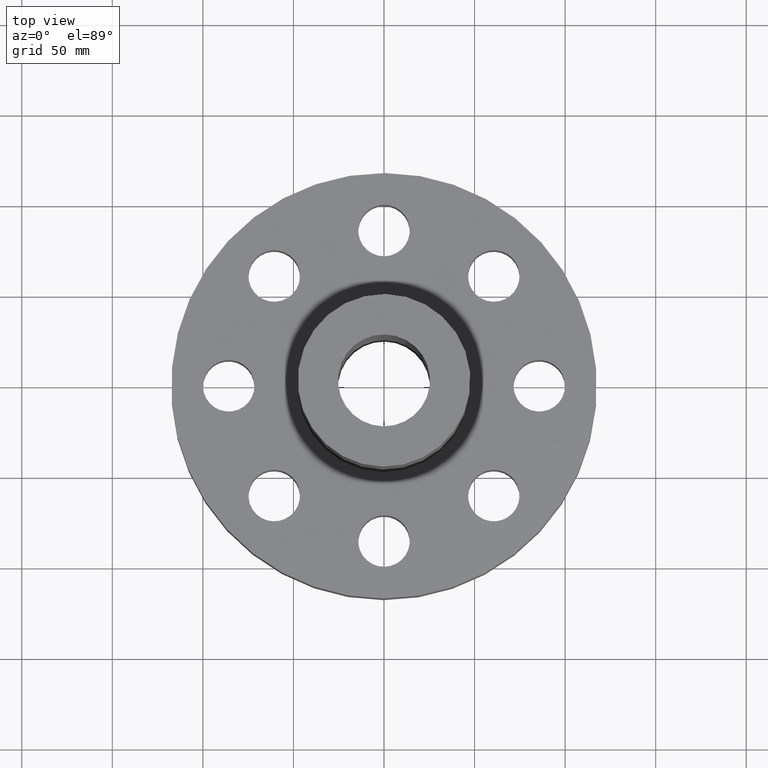
[diagram: clean part render]
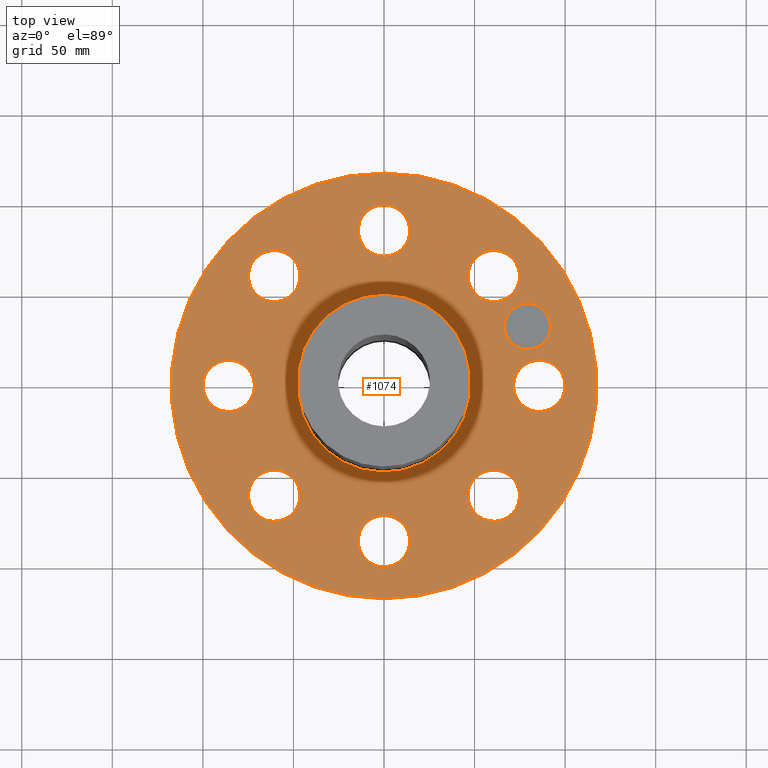
[diagram: same view with one face highlighted and labeled with its STEP entity id]
A machine part, top view. The second image highlights one B-rep face of the part: STEP entity #1074.
In plain terms, the highlighted planar face has unit normal (0, 0, -1).
Its self-contained STEP definition (entity closure, byte-faithful):
#51=AXIS2_PLACEMENT_3D('Circle Axis2P3D',#49,#50,$) ;
#254=AXIS2_PLACEMENT_3D('Circle Axis2P3D',#252,#253,$) ;
#278=AXIS2_PLACEMENT_3D('Circle Axis2P3D',#276,#277,$) ;
#297=AXIS2_PLACEMENT_3D('Circle Axis2P3D',#295,#296,$) ;
#314=AXIS2_PLACEMENT_3D('Circle Axis2P3D',#312,#313,$) ;
#349=AXIS2_PLACEMENT_3D('Circle Axis2P3D',#347,#348,$) ;
#724=AXIS2_PLACEMENT_3D('Circle Axis2P3D',#722,#723,$) ;
#743=AXIS2_PLACEMENT_3D('Circle Axis2P3D',#741,#742,$) ;
#767=AXIS2_PLACEMENT_3D('Circle Axis2P3D',#765,#766,$) ;
#786=AXIS2_PLACEMENT_3D('Circle Axis2P3D',#784,#785,$) ;
#810=AXIS2_PLACEMENT_3D('Circle Axis2P3D',#808,#809,$) ;
#829=AXIS2_PLACEMENT_3D('Circle Axis2P3D',#827,#828,$) ;
#853=AXIS2_PLACEMENT_3D('Circle Axis2P3D',#851,#852,$) ;
#872=AXIS2_PLACEMENT_3D('Circle Axis2P3D',#870,#871,$) ;
#896=AXIS2_PLACEMENT_3D('Circle Axis2P3D',#894,#895,$) ;
#915=AXIS2_PLACEMENT_3D('Circle Axis2P3D',#913,#914,$) ;
#939=AXIS2_PLACEMENT_3D('Circle Axis2P3D',#937,#938,$) ;
#958=AXIS2_PLACEMENT_3D('Circle Axis2P3D',#956,#957,$) ;
#982=AXIS2_PLACEMENT_3D('Circle Axis2P3D',#980,#981,$) ;
#1001=AXIS2_PLACEMENT_3D('Circle Axis2P3D',#999,#1000,$) ;
#1014=AXIS2_PLACEMENT_3D('Plane Axis2P3D',#1011,#1012,#1013) ;
#1058=AXIS2_PLACEMENT_3D('Circle Axis2P3D',#1056,#1057,$) ;
#1067=AXIS2_PLACEMENT_3D('Circle Axis2P3D',#1065,#1066,$) ;
#44=CARTESIAN_POINT('Vertex',(2.88355376535,-0.268478301619,2.00000000001)) ;
#49=CARTESIAN_POINT('Axis2P3D Location',(3.37500000001,0.,2.00000000001)) ;
#53=CARTESIAN_POINT('Vertex',(3.86644623467,0.268478301619,2.00000000001)) ;
#252=CARTESIAN_POINT('Axis2P3D Location',(3.37500000001,0.,2.00000000001)) ;
#273=CARTESIAN_POINT('Vertex',(-2.21734311605,-4.05881934876,2.00000000001)) ;
#276=CARTESIAN_POINT('Axis2P3D Location',(0.,0.,2.00000000001)) ;
#280=CARTESIAN_POINT('Vertex',(2.21734311605,4.05881934876,2.00000000001)) ;
#295=CARTESIAN_POINT('Axis2P3D Location',(0.,0.,2.00000000001)) ;
#312=CARTESIAN_POINT('Axis2P3D Location',(0.,0.,2.00000000001)) ;
#316=CARTESIAN_POINT('Vertex',(0.898922884886,1.64546730355,2.00000000001)) ;
#318=CARTESIAN_POINT('Vertex',(-0.898922884886,-1.64546730355,2.00000000001)) ;
#347=CARTESIAN_POINT('Axis2P3D Location',(0.,0.,2.00000000001)) ;
#719=CARTESIAN_POINT('Vertex',(1.84913759372,-2.22882324907,2.00000000001)) ;
#722=CARTESIAN_POINT('Axis2P3D Location',(2.38648538651,-2.38648538651,2.00000000001)) ;
#726=CARTESIAN_POINT('Vertex',(2.92383317931,-2.54414752395,2.00000000001)) ;
#741=CARTESIAN_POINT('Axis2P3D Location',(2.38648538651,-2.38648538651,2.00000000001)) ;
#762=CARTESIAN_POINT('Vertex',(-0.268478301619,-2.88355376535,2.00000000001)) ;
#765=CARTESIAN_POINT('Axis2P3D Location',(-3.52823321745E-016,-3.37500000001,2.00000000001)) ;
#769=CARTESIAN_POINT('Vertex',(0.268478301619,-3.86644623467,2.00000000001)) ;
#784=CARTESIAN_POINT('Axis2P3D Location',(-3.52823321745E-016,-3.37500000001,2.00000000001)) ;
#805=CARTESIAN_POINT('Vertex',(-2.22882324907,-1.84913759372,2.00000000001)) ;
#808=CARTESIAN_POINT('Axis2P3D Location',(-2.38648538651,-2.38648538651,2.00000000001)) ;
#812=CARTESIAN_POINT('Vertex',(-2.54414752395,-2.92383317931,2.00000000001)) ;
#827=CARTESIAN_POINT('Axis2P3D Location',(-2.38648538651,-2.38648538651,2.00000000001)) ;
#848=CARTESIAN_POINT('Vertex',(-2.88355376535,0.268478301619,2.00000000001)) ;
#851=CARTESIAN_POINT('Axis2P3D Location',(-3.37500000001,-4.13318294714E-016,2.00000000001)) ;
#855=CARTESIAN_POINT('Vertex',(-3.86644623467,-0.268478301619,2.00000000001)) ;
#870=CARTESIAN_POINT('Axis2P3D Location',(-3.37500000001,-4.13318294714E-016,2.00000000001)) ;
#891=CARTESIAN_POINT('Vertex',(-1.84913759372,2.22882324907,2.00000000001)) ;
#894=CARTESIAN_POINT('Axis2P3D Location',(-2.38648538651,2.38648538651,2.00000000001)) ;
#898=CARTESIAN_POINT('Vertex',(-2.92383317931,2.54414752395,2.00000000001)) ;
#913=CARTESIAN_POINT('Axis2P3D Location',(-2.38648538651,2.38648538651,2.00000000001)) ;
#934=CARTESIAN_POINT('Vertex',(0.268478301619,2.88355376535,2.00000000001)) ;
#937=CARTESIAN_POINT('Axis2P3D Location',(-6.19977442071E-016,3.37500000001,2.00000000001)) ;
#941=CARTESIAN_POINT('Vertex',(-0.268478301619,3.86644623467,2.00000000001)) ;
#956=CARTESIAN_POINT('Axis2P3D Location',(-6.19977442071E-016,3.37500000001,2.00000000001)) ;
#977=CARTESIAN_POINT('Vertex',(2.22882324907,1.84913759372,2.00000000001)) ;
#980=CARTESIAN_POINT('Axis2P3D Location',(2.38648538651,2.38648538651,2.00000000001)) ;
#984=CARTESIAN_POINT('Vertex',(2.54414752395,2.92383317931,2.00000000001)) ;
#999=CARTESIAN_POINT('Axis2P3D Location',(2.38648538651,2.38648538651,2.00000000001)) ;
#1011=CARTESIAN_POINT('Axis2P3D Location',(0.,4.62500000002,2.00000000001)) ;
#1056=CARTESIAN_POINT('Axis2P3D Location',(3.11809342224,1.29155658424,2.00000000001)) ;
#1060=CARTESIAN_POINT('Vertex',(3.30943513651,0.829616822599,2.00000000001)) ;
#1062=CARTESIAN_POINT('Vertex',(2.92675170797,1.75349634588,2.00000000001)) ;
#1065=CARTESIAN_POINT('Axis2P3D Location',(3.11809342224,1.29155658424,2.00000000001)) ;
#50=DIRECTION('Axis2P3D Direction',(0.,-0.,0.0393700787402)) ;
#253=DIRECTION('Axis2P3D Direction',(0.,-0.,0.0393700787402)) ;
#277=DIRECTION('Axis2P3D Direction',(0.,0.,-0.0393700787402)) ;
#296=DIRECTION('Axis2P3D Direction',(0.,0.,-0.0393700787402)) ;
#313=DIRECTION('Axis2P3D Direction',(0.,0.,-0.0393700787402)) ;
#348=DIRECTION('Axis2P3D Direction',(0.,0.,-0.0393700787402)) ;
#723=DIRECTION('Axis2P3D Direction',(-0.,0.,0.0393700787402)) ;
#742=DIRECTION('Axis2P3D Direction',(-0.,0.,0.0393700787402)) ;
#766=DIRECTION('Axis2P3D Direction',(-0.,0.,0.0393700787402)) ;
#785=DIRECTION('Axis2P3D Direction',(-0.,0.,0.0393700787402)) ;
#809=DIRECTION('Axis2P3D Direction',(0.,0.,0.0393700787402)) ;
#828=DIRECTION('Axis2P3D Direction',(0.,0.,0.0393700787402)) ;
#852=DIRECTION('Axis2P3D Direction',(0.,0.,0.0393700787402)) ;
#871=DIRECTION('Axis2P3D Direction',(0.,0.,0.0393700787402)) ;
#895=DIRECTION('Axis2P3D Direction',(0.,0.,0.0393700787402)) ;
#914=DIRECTION('Axis2P3D Direction',(0.,0.,0.0393700787402)) ;
#938=DIRECTION('Axis2P3D Direction',(0.,0.,0.0393700787402)) ;
#957=DIRECTION('Axis2P3D Direction',(0.,0.,0.0393700787402)) ;
#981=DIRECTION('Axis2P3D Direction',(0.,-0.,0.0393700787402)) ;
#1000=DIRECTION('Axis2P3D Direction',(0.,-0.,0.0393700787402)) ;
#1012=DIRECTION('Axis2P3D Direction',(0.,0.,-0.0393700787402)) ;
#1013=DIRECTION('Axis2P3D XDirection',(0.0393700787402,0.,0.)) ;
#1057=DIRECTION('Axis2P3D Direction',(0.,0.,-0.0393700787402)) ;
#1066=DIRECTION('Axis2P3D Direction',(0.,0.,-0.0393700787402)) ;
#1017=ORIENTED_EDGE('',*,*,#299,.F.) ;
#1018=ORIENTED_EDGE('',*,*,#282,.F.) ;
#1021=ORIENTED_EDGE('',*,*,#55,.T.) ;
#1022=ORIENTED_EDGE('',*,*,#256,.T.) ;
#1025=ORIENTED_EDGE('',*,*,#351,.T.) ;
#1026=ORIENTED_EDGE('',*,*,#320,.T.) ;
#1029=ORIENTED_EDGE('',*,*,#745,.T.) ;
#1030=ORIENTED_EDGE('',*,*,#728,.T.) ;
#1033=ORIENTED_EDGE('',*,*,#788,.T.) ;
#1034=ORIENTED_EDGE('',*,*,#771,.T.) ;
#1037=ORIENTED_EDGE('',*,*,#831,.T.) ;
#1038=ORIENTED_EDGE('',*,*,#814,.T.) ;
#1041=ORIENTED_EDGE('',*,*,#874,.T.) ;
#1042=ORIENTED_EDGE('',*,*,#857,.T.) ;
#1045=ORIENTED_EDGE('',*,*,#917,.T.) ;
#1046=ORIENTED_EDGE('',*,*,#900,.T.) ;
#1049=ORIENTED_EDGE('',*,*,#960,.T.) ;
#1050=ORIENTED_EDGE('',*,*,#943,.T.) ;
#1053=ORIENTED_EDGE('',*,*,#1003,.T.) ;
#1054=ORIENTED_EDGE('',*,*,#986,.T.) ;
#1071=ORIENTED_EDGE('',*,*,#1064,.F.) ;
#1072=ORIENTED_EDGE('',*,*,#1069,.F.) ;
#1023=FACE_BOUND('',#1020,.T.) ;
#1027=FACE_BOUND('',#1024,.T.) ;
#1031=FACE_BOUND('',#1028,.T.) ;
#1035=FACE_BOUND('',#1032,.T.) ;
#1039=FACE_BOUND('',#1036,.T.) ;
#1043=FACE_BOUND('',#1040,.T.) ;
#1047=FACE_BOUND('',#1044,.T.) ;
#1051=FACE_BOUND('',#1048,.T.) ;
#1055=FACE_BOUND('',#1052,.T.) ;
#1073=FACE_BOUND('',#1070,.T.) ;
#1074=ADVANCED_FACE('PartBody',(#1019,#1023,#1027,#1031,#1035,#1039,#1043,#1047,#1051,#1055,#1073),#1015,.F.) ;
#52=CIRCLE('generated circle',#51,0.560000000002) ;
#255=CIRCLE('generated circle',#254,0.560000000002) ;
#279=CIRCLE('generated circle',#278,4.62500000002) ;
#298=CIRCLE('generated circle',#297,4.62500000002) ;
#315=CIRCLE('generated circle',#314,1.87500000001) ;
#350=CIRCLE('generated circle',#349,1.87500000001) ;
#725=CIRCLE('generated circle',#724,0.560000000002) ;
#744=CIRCLE('generated circle',#743,0.560000000002) ;
#768=CIRCLE('generated circle',#767,0.560000000002) ;
#787=CIRCLE('generated circle',#786,0.560000000002) ;
#811=CIRCLE('generated circle',#810,0.560000000002) ;
#830=CIRCLE('generated circle',#829,0.560000000002) ;
#854=CIRCLE('generated circle',#853,0.560000000002) ;
#873=CIRCLE('generated circle',#872,0.560000000002) ;
#897=CIRCLE('generated circle',#896,0.560000000002) ;
#916=CIRCLE('generated circle',#915,0.560000000002) ;
#940=CIRCLE('generated circle',#939,0.560000000002) ;
#959=CIRCLE('generated circle',#958,0.560000000002) ;
#983=CIRCLE('generated circle',#982,0.560000000002) ;
#1002=CIRCLE('generated circle',#1001,0.560000000002) ;
#1059=CIRCLE('generated circle',#1058,0.499999995002) ;
#1068=CIRCLE('generated circle',#1067,0.499999995002) ;
#55=EDGE_CURVE('',#54,#45,#52,.F.) ;
#256=EDGE_CURVE('',#45,#54,#255,.F.) ;
#282=EDGE_CURVE('',#274,#281,#279,.T.) ;
#299=EDGE_CURVE('',#281,#274,#298,.T.) ;
#320=EDGE_CURVE('',#317,#319,#315,.T.) ;
#351=EDGE_CURVE('',#319,#317,#350,.T.) ;
#728=EDGE_CURVE('',#727,#720,#725,.F.) ;
#745=EDGE_CURVE('',#720,#727,#744,.F.) ;
#771=EDGE_CURVE('',#770,#763,#768,.F.) ;
#788=EDGE_CURVE('',#763,#770,#787,.F.) ;
#814=EDGE_CURVE('',#813,#806,#811,.F.) ;
#831=EDGE_CURVE('',#806,#813,#830,.F.) ;
#857=EDGE_CURVE('',#856,#849,#854,.F.) ;
#874=EDGE_CURVE('',#849,#856,#873,.F.) ;
#900=EDGE_CURVE('',#899,#892,#897,.F.) ;
#917=EDGE_CURVE('',#892,#899,#916,.F.) ;
#943=EDGE_CURVE('',#942,#935,#940,.F.) ;
#960=EDGE_CURVE('',#935,#942,#959,.F.) ;
#986=EDGE_CURVE('',#985,#978,#983,.F.) ;
#1003=EDGE_CURVE('',#978,#985,#1002,.F.) ;
#1064=EDGE_CURVE('',#1061,#1063,#1059,.F.) ;
#1069=EDGE_CURVE('',#1063,#1061,#1068,.F.) ;
#1016=EDGE_LOOP('',(#1017,#1018)) ;
#1020=EDGE_LOOP('',(#1021,#1022)) ;
#1024=EDGE_LOOP('',(#1025,#1026)) ;
#1028=EDGE_LOOP('',(#1029,#1030)) ;
#1032=EDGE_LOOP('',(#1033,#1034)) ;
#1036=EDGE_LOOP('',(#1037,#1038)) ;
#1040=EDGE_LOOP('',(#1041,#1042)) ;
#1044=EDGE_LOOP('',(#1045,#1046)) ;
#1048=EDGE_LOOP('',(#1049,#1050)) ;
#1052=EDGE_LOOP('',(#1053,#1054)) ;
#1070=EDGE_LOOP('',(#1071,#1072)) ;
#1019=FACE_OUTER_BOUND('',#1016,.T.) ;
#1015=PLANE('',#1014) ;
#45=VERTEX_POINT('',#44) ;
#54=VERTEX_POINT('',#53) ;
#274=VERTEX_POINT('',#273) ;
#281=VERTEX_POINT('',#280) ;
#317=VERTEX_POINT('',#316) ;
#319=VERTEX_POINT('',#318) ;
#720=VERTEX_POINT('',#719) ;
#727=VERTEX_POINT('',#726) ;
#763=VERTEX_POINT('',#762) ;
#770=VERTEX_POINT('',#769) ;
#806=VERTEX_POINT('',#805) ;
#813=VERTEX_POINT('',#812) ;
#849=VERTEX_POINT('',#848) ;
#856=VERTEX_POINT('',#855) ;
#892=VERTEX_POINT('',#891) ;
#899=VERTEX_POINT('',#898) ;
#935=VERTEX_POINT('',#934) ;
#942=VERTEX_POINT('',#941) ;
#978=VERTEX_POINT('',#977) ;
#985=VERTEX_POINT('',#984) ;
#1061=VERTEX_POINT('',#1060) ;
#1063=VERTEX_POINT('',#1062) ;